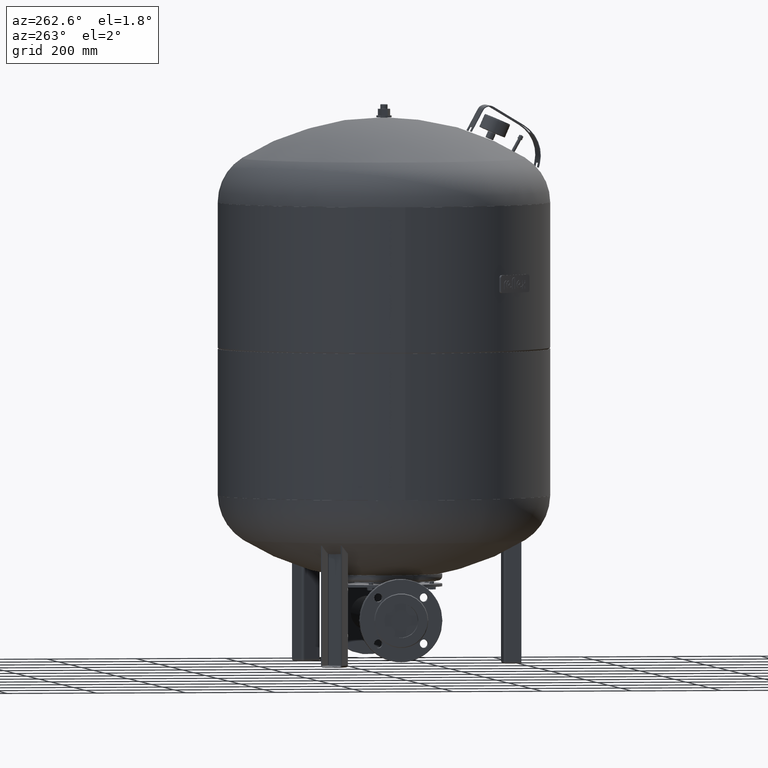
[diagram: clean part render]
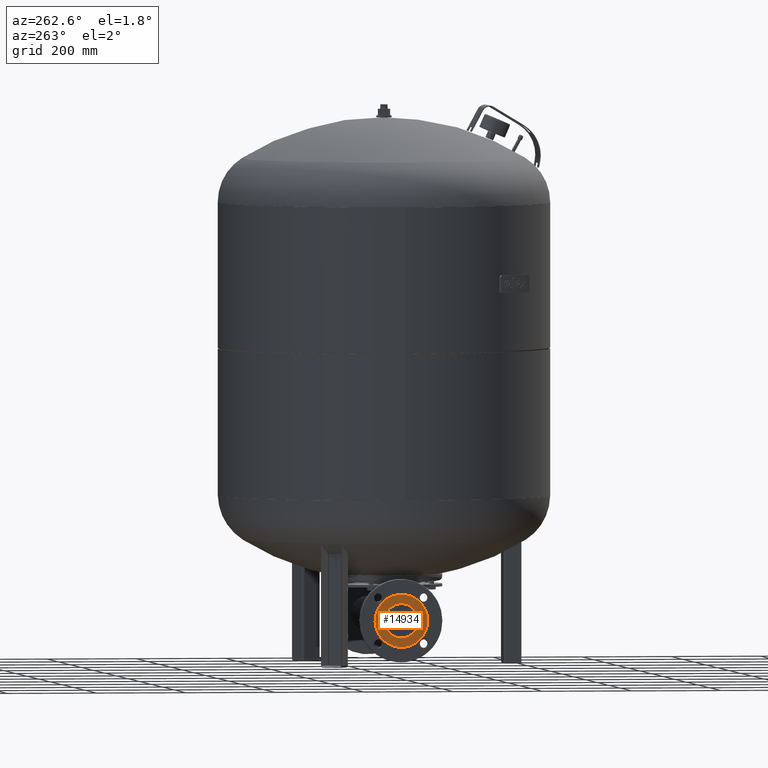
[diagram: same view with one face highlighted and labeled with its STEP entity id]
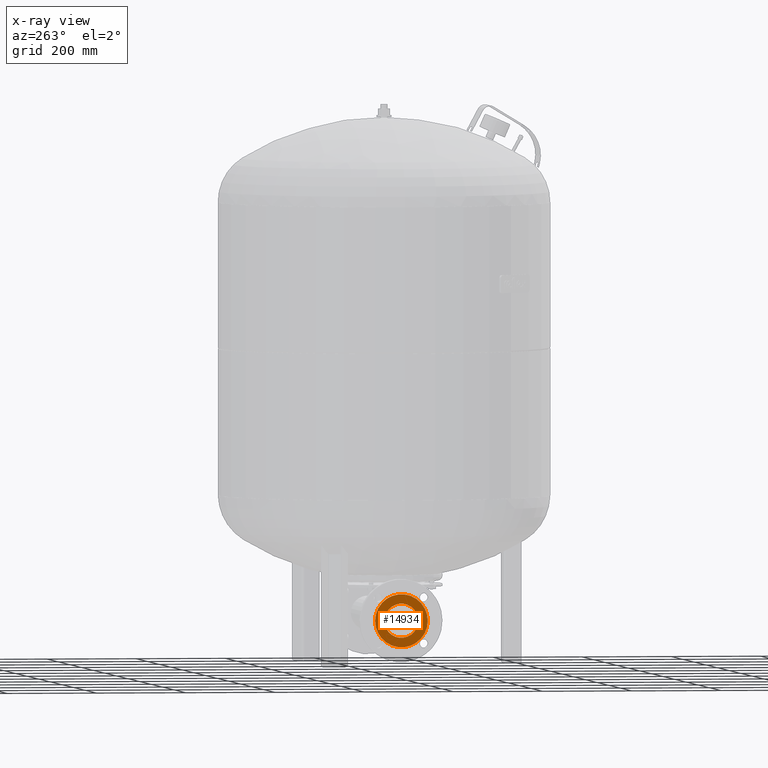
[diagram: x-ray of the same camera — body ghosted, the highlighted face saturated]
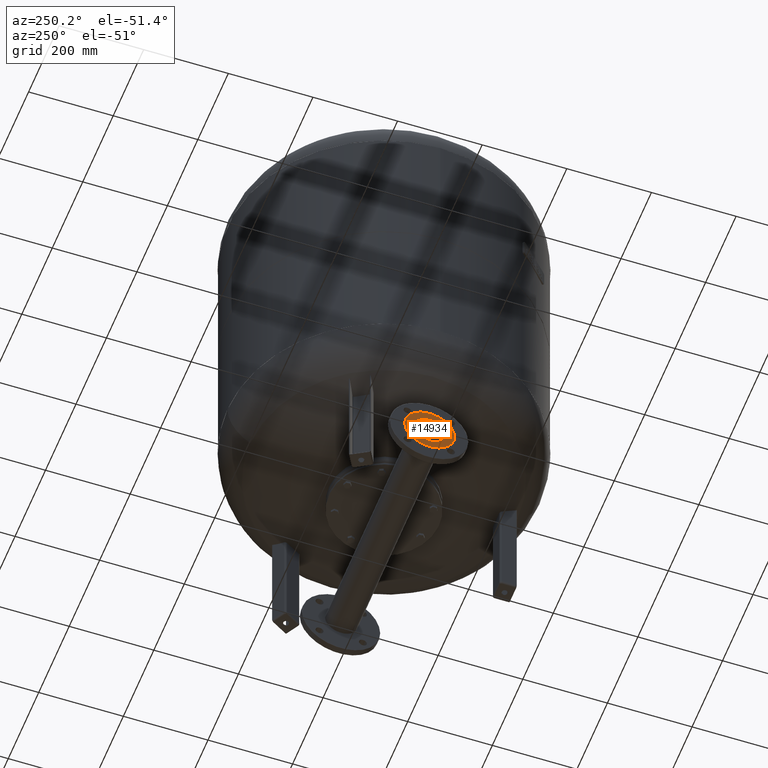
[diagram: same view with one face highlighted and labeled with its STEP entity id]
A machine part, auxiliary view. The second image highlights one B-rep face of the part: STEP entity #14934.
The next image is the same camera in x-ray: the body ghosted, the highlighted face saturated — about 0% of this face is hidden behind the body in this view.
A second angle (auxiliary view) of the same face is appended — the face is thin or edge-on in the first view.
In plain terms, the highlighted face is a freeform B-spline surface patch.
Its self-contained STEP definition (entity closure, byte-faithful):
#13867=CARTESIAN_POINT('',(-300.0,-59.0,105.0));
#13868=VERTEX_POINT('',#13867);
#13884=CARTESIAN_POINT('',(-300.0,59.000000000000007,104.999999999999990));
#13885=VERTEX_POINT('',#13884);
#13892=CARTESIAN_POINT('',(-300.0,0.0,105.0));
#13893=DIRECTION('',(1.0,0.0,0.0));
#13894=DIRECTION('',(0.0,-1.0,0.0));
#13895=AXIS2_PLACEMENT_3D('',#13892,#13893,#13894);
#13896=CIRCLE('',#13895,59.0);
#13897=EDGE_CURVE('',#13885,#13868,#13896,.T.);
#14409=CARTESIAN_POINT('',(-300.0,-38.049999999999997,105.0));
#14410=VERTEX_POINT('',#14409);
#14426=CARTESIAN_POINT('',(-300.0,38.049999999999997,105.0));
#14427=VERTEX_POINT('',#14426);
#14434=CARTESIAN_POINT('',(-300.0,0.0,105.0));
#14435=DIRECTION('',(-1.0,0.0,0.0));
#14436=DIRECTION('',(0.0,-1.0,0.0));
#14437=AXIS2_PLACEMENT_3D('',#14434,#14435,#14436);
#14438=CIRCLE('',#14437,38.049999999999997);
#14439=EDGE_CURVE('',#14427,#14410,#14438,.T.);
#14471=CARTESIAN_POINT('',(-300.0,0.0,105.0));
#14472=DIRECTION('',(-1.0,0.0,0.0));
#14473=DIRECTION('',(0.0,-1.0,0.0));
#14474=AXIS2_PLACEMENT_3D('',#14471,#14472,#14473);
#14475=CIRCLE('',#14474,38.049999999999997);
#14476=EDGE_CURVE('',#14410,#14427,#14475,.T.);
#14909=CARTESIAN_POINT('',(-300.0,0.0,105.0));
#14910=DIRECTION('',(1.0,0.0,0.0));
#14911=DIRECTION('',(0.0,-1.0,0.0));
#14912=AXIS2_PLACEMENT_3D('',#14909,#14910,#14911);
#14913=CIRCLE('',#14912,59.0);
#14914=EDGE_CURVE('',#13868,#13885,#14913,.T.);
#14921=CARTESIAN_POINT('',(-300.0,59.0,46.0));
#14922=CARTESIAN_POINT('',(-300.0,-59.0,46.0));
#14923=CARTESIAN_POINT('',(-300.0,59.0,164.0));
#14924=CARTESIAN_POINT('',(-300.0,-59.0,164.0));
#14925=B_SPLINE_SURFACE_WITH_KNOTS('',1,1,((#14921,#14923),(#14922,#14924)),.UNSPECIFIED.,.F.,.F.,.U.,(2,2),(2,2),(0.0,118.0),(0.0,118.0),.UNSPECIFIED.);
#14926=ORIENTED_EDGE('',*,*,#14914,.F.);
#14927=ORIENTED_EDGE('',*,*,#13897,.F.);
#14928=EDGE_LOOP('',(#14926,#14927));
#14929=FACE_OUTER_BOUND('',#14928,.T.);
#14930=ORIENTED_EDGE('',*,*,#14476,.F.);
#14931=ORIENTED_EDGE('',*,*,#14439,.F.);
#14932=EDGE_LOOP('',(#14930,#14931));
#14933=FACE_BOUND('',#14932,.T.);
#14934=ADVANCED_FACE('',(#14929,#14933),#14925,.T.);